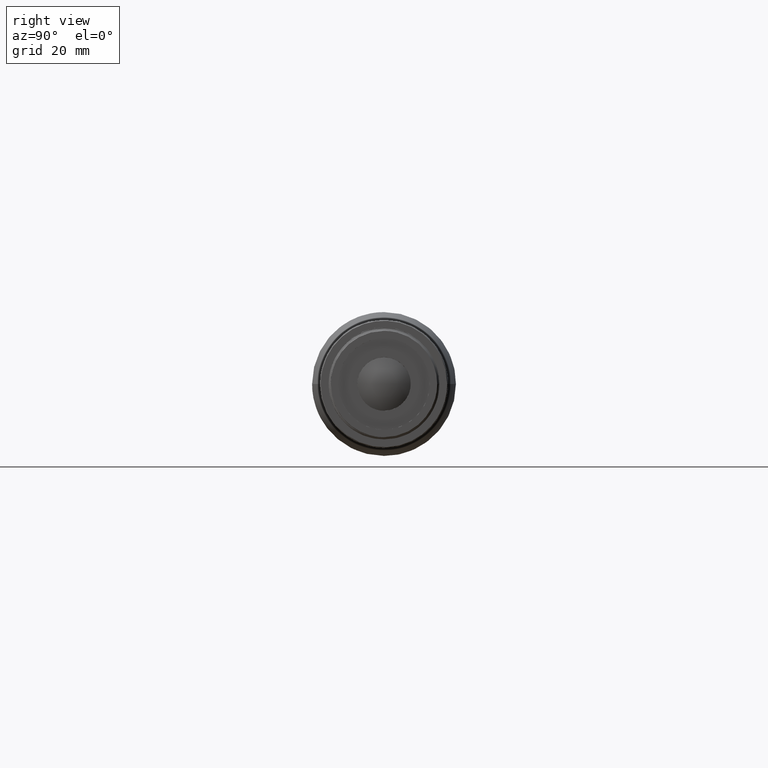
[diagram: clean part render]
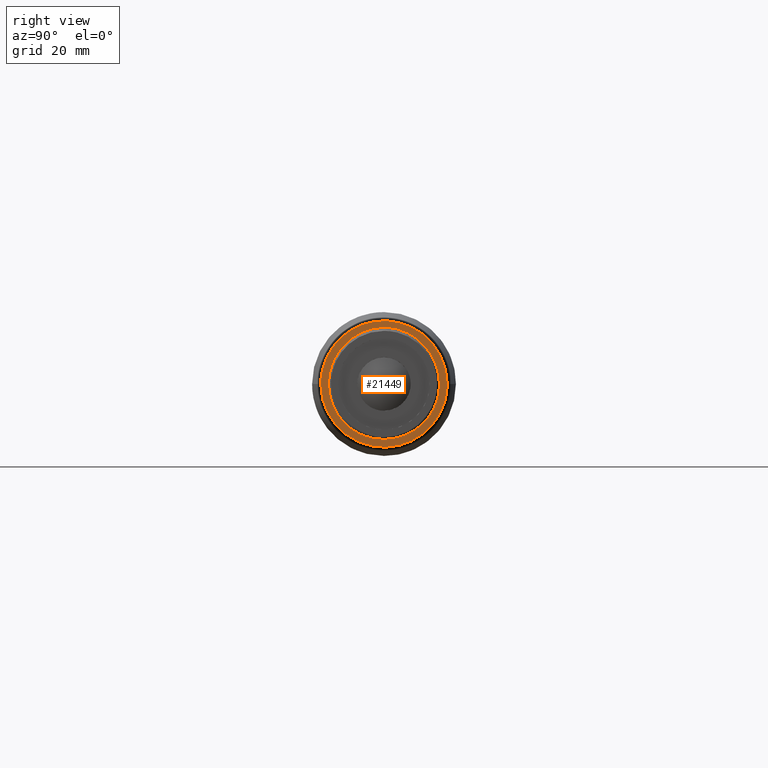
[diagram: same view with one face highlighted and labeled with its STEP entity id]
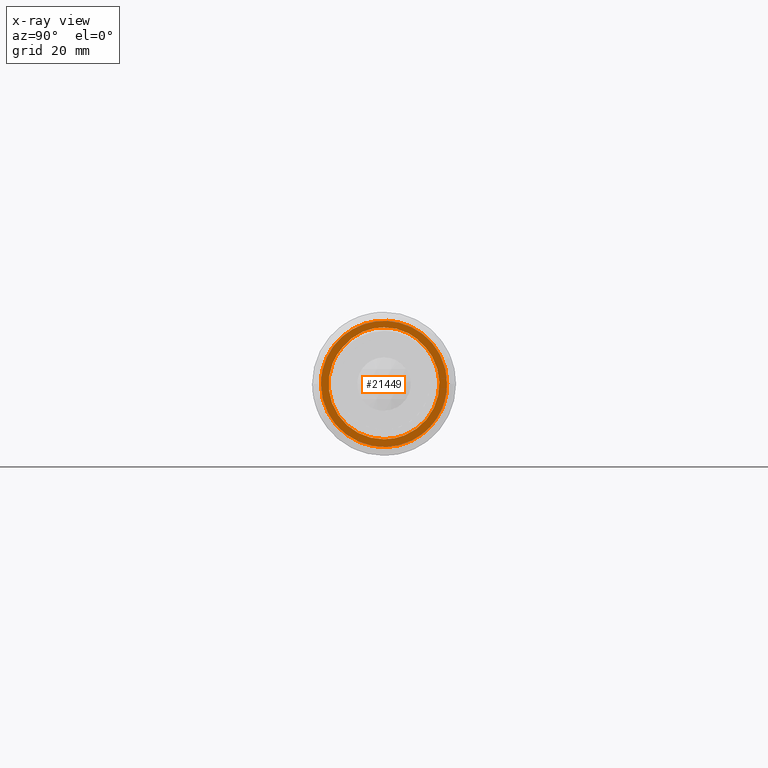
[diagram: x-ray of the same camera — body ghosted, the highlighted face saturated]
A machine part, right view. The second image highlights one B-rep face of the part: STEP entity #21449.
The next image is the same camera in x-ray: the body ghosted, the highlighted face saturated — about 0% of this face is hidden behind the body in this view.
In plain terms, the highlighted planar face has unit normal (1, 0, 0).
Its self-contained STEP definition (entity closure, byte-faithful):
#209 = CARTESIAN_POINT ( 'NONE',  ( 110.8899999999999721, -14.38089025966805679, -1.854888390386311814 ) ) ;
#343 = CARTESIAN_POINT ( 'NONE',  ( 110.8899999999999721, 6.124928014343616667, 13.14698133662224677 ) ) ;
#346 = B_SPLINE_CURVE_WITH_KNOTS ( 'NONE', 3,
 ( #15516, #21509, #11596, #10904, #4902, #16903, #16630, #2833, #20813, #22632, #17032, #24458, #11042, #2968, #10768, #6860, #4153, #9074 ),
 .UNSPECIFIED., .F., .F.,
 ( 4, 2, 2, 2, 2, 2, 2, 2, 4 ),
 ( 0.000000000000000000, 0.1250000000000000833, 0.2500000000000001665, 0.3750000000000001665, 0.5000000000000001110, 0.6250000000000001110, 0.7500000000000000000, 0.8750000000000000000, 1.000000000000000000 ),
 .UNSPECIFIED. ) ;
#469 = CARTESIAN_POINT ( 'NONE',  ( 110.8900000000000148, -9.118212392538644906, -11.28776646199011147 ) ) ;
#477 = CARTESIAN_POINT ( 'NONE',  ( 110.8900000000000006, -13.88176625558764954, 4.235138104806719817 ) ) ;
#549 = AXIS2_PLACEMENT_3D ( 'NONE', #23733, #10295, #20078 ) ;
#606 = CARTESIAN_POINT ( 'NONE',  ( 110.8900000000000290, 3.055694739063578247, -14.17585738554136121 ) ) ;
#614 = CARTESIAN_POINT ( 'NONE',  ( 110.8900000000000432, -2.529376640427713596, 14.27770877346809009 ) ) ;
#624 = CARTESIAN_POINT ( 'NONE',  ( 110.8899929041900236, 10.99893063213385069, 6.349116941422508376 ) ) ;
#684 = CARTESIAN_POINT ( 'NONE',  ( 110.8900000000000290, 8.191349464901058752, -9.769047661782654046 ) ) ;
#732 = CARTESIAN_POINT ( 'NONE',  ( 110.8900000000000006, -8.467347902863867404, -11.79378151558363008 ) ) ;
#742 = CARTESIAN_POINT ( 'NONE',  ( 110.8900000000000148, 2.696259969605198314, 14.24713898148061553 ) ) ;
#773 = VERTEX_POINT ( 'NONE', #22778 ) ;
#788 = CARTESIAN_POINT ( 'NONE',  ( 110.8900304588281642, 10.99599495080577860, 6.354279324268050644 ) ) ;
#858 = CARTESIAN_POINT ( 'NONE',  ( 110.8900000000000148, -9.547246602812174743, -10.91330918613931367 ) ) ;
#868 = CARTESIAN_POINT ( 'NONE',  ( 110.8899999999999864, -13.14698133788247247, 6.124928011639973136 ) ) ;
#922 = CARTESIAN_POINT ( 'NONE',  ( 110.8899999999999864, 12.99824538863867751, 6.459031673815791130 ) ) ;
#994 = CARTESIAN_POINT ( 'NONE',  ( 110.8900000000000148, -9.582080048781746129, -10.88273527711077548 ) ) ;
#1055 = CARTESIAN_POINT ( 'NONE',  ( 110.8900000000000148, 14.26327141383545616, 2.609574245805175163 ) ) ;
#1123 = CARTESIAN_POINT ( 'NONE',  ( 110.8900000000000148, 11.59137060158243671, -8.711502445062738076 ) ) ;
#1310 = CARTESIAN_POINT ( 'NONE',  ( 110.8900000000000148, 7.985786536878683783, 12.10292737413514530 ) ) ;
#1447 = EDGE_CURVE ( 'NONE', #2808, #17287, #25803, .T. ) ;
#1452 = CARTESIAN_POINT ( 'NONE',  ( 110.8899999999999721, -14.49999846400000081, 0.8870597290047129713 ) ) ;
#1628 = CARTESIAN_POINT ( 'NONE',  ( 110.8900000000000148, 13.00839062788618783, -6.405615348359229522 ) ) ;
#1789 = CARTESIAN_POINT ( 'NONE',  ( 110.8900000000000006, -13.04496023603895694, -6.330806542398812020 ) ) ;
#1919 = ORIENTED_EDGE ( 'NONE', *, *, #10400, .T. ) ;
#2182 = CARTESIAN_POINT ( 'NONE',  ( 110.8899886678835855, 11.00045045016391931, 6.346565496968409548 ) ) ;
#2279 = B_SPLINE_CURVE_WITH_KNOTS ( 'NONE', 3,
 ( #2182, #624, #8552, #20423 ),
 .UNSPECIFIED., .F., .F.,
 ( 4, 4 ),
 ( 0.000000000000000000, 0.9999885151840346431 ),
 .UNSPECIFIED. ) ;
#2296 = CARTESIAN_POINT ( 'NONE',  ( 110.8899999999999864, -13.92637124779619384, -4.038099644656803378 ) ) ;
#2427 = CARTESIAN_POINT ( 'NONE',  ( 110.8900000000000148, -12.83208346972538649, -6.767554035467759910 ) ) ;
#2434 = CARTESIAN_POINT ( 'NONE',  ( 110.8900000000000148, -1.873548574637980746, 14.38150453208943702 ) ) ;
#2455 = CARTESIAN_POINT ( 'NONE',  ( 110.8899999999924120, 1.021318446481345177E-14, 12.99204006032720748 ) ) ;
#2562 = CARTESIAN_POINT ( 'NONE',  ( 110.8900000000000148, -4.063426825693380096, -13.92041956770296984 ) ) ;
#2570 = CARTESIAN_POINT ( 'NONE',  ( 110.8900000000000148, -2.256392658842234056, 14.32412991780799771 ) ) ;
#2643 = CARTESIAN_POINT ( 'NONE',  ( 110.8899999999924120, 1.021318446481345177E-14, 12.99204006032720748 ) ) ;
#2698 = CARTESIAN_POINT ( 'NONE',  ( 110.8900000000000006, 1.503127021955507292, -14.44426933156390014 ) ) ;
#2708 = CARTESIAN_POINT ( 'NONE',  ( 110.8900000000000290, -10.60684431972986275, 9.899277001283117272 ) ) ;
#2737 = B_SPLINE_CURVE_WITH_KNOTS ( 'NONE', 3,
 ( #2455, #8432, #6750, #12476, #8294, #10665, #16263, #22658, #16398, #6218 ),
 .UNSPECIFIED., .F., .F.,
 ( 4, 2, 2, 2, 4 ),
 ( 0.000000000000000000, 0.2500000000000000000, 0.5000000000000000000, 0.7500000000000000000, 1.000000000000000000 ),
 .UNSPECIFIED. ) ;
#2779 = CARTESIAN_POINT ( 'NONE',  ( 110.8899999999999864, -8.929358363957490496, 9.141035087083475119 ) ) ;
#2808 = VERTEX_POINT ( 'NONE', #10291 ) ;
#2827 = CARTESIAN_POINT ( 'NONE',  ( 110.8900000000000006, -11.83766060356584937, -8.375175776053005450 ) ) ;
#2833 = CARTESIAN_POINT ( 'NONE',  ( 110.8900000000000006, -10.42737178112445484, -7.351288742382127595 ) ) ;
#2836 = CARTESIAN_POINT ( 'NONE',  ( 110.8899999999999864, -11.99787586693648045, 8.142797945954210803 ) ) ;
#2959 = CARTESIAN_POINT ( 'NONE',  ( 110.8900000000000290, 9.917447625885047913, -10.59024997758743858 ) ) ;
#2968 = CARTESIAN_POINT ( 'NONE',  ( 110.8900000000000290, -12.37053762135592549, 3.121109961580206260 ) ) ;
#3157 = CARTESIAN_POINT ( 'NONE',  ( 110.8900000000000006, 8.039051855987207063, 12.06762231554328046 ) ) ;
#3226 = CARTESIAN_POINT ( 'NONE',  ( 110.8900000000000006, 14.32634590240914285, -2.240642804258783816 ) ) ;
#3281 = CARTESIAN_POINT ( 'NONE',  ( 110.8900000000000006, 13.50348643214929467, 5.282673392577245330 ) ) ;
#3355 = CARTESIAN_POINT ( 'NONE',  ( 110.8900000000000006, 12.94440261534849945, -6.534393367782600492 ) ) ;
#3599 = CARTESIAN_POINT ( 'NONE',  ( 110.8900000000000006, 13.90551440681925222, -4.109349991613386877 ) ) ;
#3992 = CARTESIAN_POINT ( 'NONE',  ( 110.8900000000000006, -13.92359589969639089, -4.047664094962153847 ) ) ;
#4054 = EDGE_CURVE ( 'NONE', #14751, #2808, #2737, .T. ) ;
#4153 = CARTESIAN_POINT ( 'NONE',  ( 110.8900000000000148, -10.30758092368942158, 7.518420564737843037 ) ) ;
#4378 = CARTESIAN_POINT ( 'NONE',  ( 110.8899999999999721, 9.482118777172981794, -10.96994365850258291 ) ) ;
#4386 = CARTESIAN_POINT ( 'NONE',  ( 110.8900000000000006, -13.45928733468691973, 5.394297387163335955 ) ) ;
#4501 = CARTESIAN_POINT ( 'NONE',  ( 110.8900000000000006, -11.29485484565264208, -9.106888044221438605 ) ) ;
#4508 = CARTESIAN_POINT ( 'NONE',  ( 110.8900000000000006, -5.145670424356409534, 13.55648168336941417 ) ) ;
#4630 = CARTESIAN_POINT ( 'NONE',  ( 110.8900000000000006, -1.207969404247646983, -14.49995264421553998 ) ) ;
#4640 = CARTESIAN_POINT ( 'NONE',  ( 110.8900000000000148, 2.840488480973712093, 14.21927406366260271 ) ) ;
#4714 = CARTESIAN_POINT ( 'NONE',  ( 110.8899999999999864, 12.69978878100096864, -1.117077970501929585 ) ) ;
#4765 = CARTESIAN_POINT ( 'NONE',  ( 110.8899999999999864, 5.907542809610066392, -13.24791012194770623 ) ) ;
#4776 = CARTESIAN_POINT ( 'NONE',  ( 110.8900000000000006, -4.953289043290712179, 13.62863848170736070 ) ) ;
#4844 = CARTESIAN_POINT ( 'NONE',  ( 110.8900000000000148, 9.767074011443263259, -8.193553103259286985 ) ) ;
#4896 = CARTESIAN_POINT ( 'NONE',  ( 110.8900000000000290, 9.442932776301500297, -11.00377650353194703 ) ) ;
#4902 = CARTESIAN_POINT ( 'NONE',  ( 110.8900000000000432, -5.876003834468471965, -11.32437330652600593 ) ) ;
#4907 = CARTESIAN_POINT ( 'NONE',  ( 110.8900000000000006, -5.792808705539210123, 13.30164514551074539 ) ) ;
#5028 = CARTESIAN_POINT ( 'NONE',  ( 110.8899999999999721, 12.85306710590256429, -6.713602278769433163 ) ) ;
#5089 = CARTESIAN_POINT ( 'NONE',  ( 110.8900000000000006, 11.58889893280850991, 8.772101741283437448 ) ) ;
#5222 = CARTESIAN_POINT ( 'NONE',  ( 110.8900000000000148, 14.27770501275336912, 2.529396966660115265 ) ) ;
#5291 = CARTESIAN_POINT ( 'NONE',  ( 110.8900000000000290, 14.49999846373557943, -0.6446150092553604161 ) ) ;
#5413 = CARTESIAN_POINT ( 'NONE',  ( 110.8900000000000432, 11.56173098096975060, -8.750803542926636425 ) ) ;
#5678 = CARTESIAN_POINT ( 'NONE',  ( 110.8900000000000006, 14.46973944790725142, 1.105690196509306000 ) ) ;
#6194 = CARTESIAN_POINT ( 'NONE',  ( 110.8900000000000290, -14.37434275448517162, -1.904811901558434162 ) ) ;
#6218 = CARTESIAN_POINT ( 'NONE',  ( 110.8900000000000006, 9.499345821164963510, 8.429260288825503267 ) ) ;
#6333 = CARTESIAN_POINT ( 'NONE',  ( 110.8900000000000006, -2.583930658671265590, 14.26793579797147515 ) ) ;
#6455 = CARTESIAN_POINT ( 'NONE',  ( 110.8900000000000148, -11.60953451924139301, -8.687283797727372914 ) ) ;
#6465 = CARTESIAN_POINT ( 'NONE',  ( 110.8900000000000148, -14.21927406424515006, 2.840488478056536703 ) ) ;
#6533 = CARTESIAN_POINT ( 'NONE',  ( 110.8900000000000290, 4.345896369681974569, -11.93688448497686672 ) ) ;
#6584 = CARTESIAN_POINT ( 'NONE',  ( 110.8900000000000006, -7.661080222008679996, -12.31649478033846634 ) ) ;
#6593 = CARTESIAN_POINT ( 'NONE',  ( 110.8900000000000006, -0.4432766347415915686, 14.50001412060764672 ) ) ;
#6665 = CARTESIAN_POINT ( 'NONE',  ( 110.8900304588281642, 10.99599495080577860, 6.354279324268050644 ) ) ;
#6666 = CARTESIAN_POINT ( 'NONE',  ( 110.8900000000000006, 10.44036798141070932, -7.316502900086195638 ) ) ;
#6715 = CARTESIAN_POINT ( 'NONE',  ( 110.8900000000000148, 4.969433959931864209, -13.64412191480543513 ) ) ;
#6725 = CARTESIAN_POINT ( 'NONE',  ( 110.8900000000000006, 3.041815769170938211, 14.17823101277386222 ) ) ;
#6750 = CARTESIAN_POINT ( 'NONE',  ( 110.8900000000000148, 1.813080508921854683, 12.89066805962905171 ) ) ;
#6803 = CARTESIAN_POINT ( 'NONE',  ( 110.8900000000000006, 11.55470781776872968, -5.386907688741958466 ) ) ;
#6854 = CARTESIAN_POINT ( 'NONE',  ( 110.8899999999999721, 8.790167010762084843, -11.53781372424980134 ) ) ;
#6860 = CARTESIAN_POINT ( 'NONE',  ( 110.8900000000000006, -10.98056838731156049, 6.496048516234424142 ) ) ;
#6864 = CARTESIAN_POINT ( 'NONE',  ( 110.8900000000000006, -7.206662549229421622, 12.58657438146572360 ) ) ;
#6912 = CARTESIAN_POINT ( 'NONE',  ( 110.8900000000000148, 10.96058772579561591, 9.545453078416885617 ) ) ;
#6933 = CARTESIAN_POINT ( 'NONE',  ( 110.8900000000000148, -1.812917754194805164, 12.89078964398025740 ) ) ;
#6984 = CARTESIAN_POINT ( 'NONE',  ( 110.8900000000000148, -10.80777775054700207, -9.690136931243463536 ) ) ;
#7115 = CARTESIAN_POINT ( 'NONE',  ( 110.8900000000000148, 13.81561258614773102, -4.404277707119882201 ) ) ;
#7174 = CARTESIAN_POINT ( 'NONE',  ( 110.8899999999999579, 8.653621585588290088, 11.63948049037379739 ) ) ;
#7817 = FACE_BOUND ( 'NONE', #11477, .T. ) ;
#7846 = ORIENTED_EDGE ( 'NONE', *, *, #12336, .F. ) ;
#7886 = CARTESIAN_POINT ( 'NONE',  ( 110.8899999999999721, -14.38980823323456271, -1.784979897729058074 ) ) ;
#8006 = EDGE_CURVE ( 'NONE', #20088, #12445, #16924, .T. ) ;
#8137 = CARTESIAN_POINT ( 'NONE',  ( 110.8900000000000148, -14.37697428766872143, -1.884843282485363147 ) ) ;
#8212 = CARTESIAN_POINT ( 'NONE',  ( 110.8899886678835855, 11.00045045016391931, 6.346565496968409548 ) ) ;
#8267 = CARTESIAN_POINT ( 'NONE',  ( 110.8900000000000006, -13.33499499643911790, -5.701160555243199646 ) ) ;
#8275 = CARTESIAN_POINT ( 'NONE',  ( 110.8900000000000006, -7.882193009358367419, 12.17065454666316349 ) ) ;
#8294 = CARTESIAN_POINT ( 'NONE',  ( 110.8900000000000148, 4.447344846687964370, 12.18689512701919497 ) ) ;
#8342 = CARTESIAN_POINT ( 'NONE',  ( 110.8899999999999864, 11.97810214982849253, -4.365497355696341231 ) ) ;
#8402 = CARTESIAN_POINT ( 'NONE',  ( 110.8899999999999864, 3.533751234503810235, -14.06285383404458855 ) ) ;
#8410 = CARTESIAN_POINT ( 'NONE',  ( 110.8900000000000006, -13.43638908712624236, 5.451087907631694485 ) ) ;
#8432 = CARTESIAN_POINT ( 'NONE',  ( 110.8899999999999864, 0.9118714742061003742, 12.99204006000000078 ) ) ;
#8533 = CARTESIAN_POINT ( 'NONE',  ( 110.8900000000000290, 3.312711746047914296, -14.11688490520861272 ) ) ;
#8543 = CARTESIAN_POINT ( 'NONE',  ( 110.8900000000000290, -3.100699643712069520, 14.17240503409704822 ) ) ;
#8552 = CARTESIAN_POINT ( 'NONE',  ( 110.8900181625294152, 10.99745163462843323, 6.351691678308744038 ) ) ;
#8614 = CARTESIAN_POINT ( 'NONE',  ( 110.8900000000000006, 11.55734416926284602, 5.381400365357633220 ) ) ;
#8617 = CARTESIAN_POINT ( 'NONE',  ( 110.8900000000000432, -0.9122427748870053366, 12.99204005999999545 ) ) ;
#8663 = CARTESIAN_POINT ( 'NONE',  ( 110.8900000000000432, -3.852228699490912511, -13.97914109770992397 ) ) ;
#8674 = CARTESIAN_POINT ( 'NONE',  ( 110.8900000000000006, -4.566489028176514253, 13.76576423760447554 ) ) ;
#8797 = CARTESIAN_POINT ( 'NONE',  ( 110.8900000000000148, 6.694006864263763568, -12.86241432943043961 ) ) ;
#8807 = CARTESIAN_POINT ( 'NONE',  ( 110.8900000000000006, -13.31924584853929616, 5.733654367342062130 ) ) ;
#8935 = CARTESIAN_POINT ( 'NONE',  ( 110.8900000000000148, 2.540165628637469197, -14.28159906963915127 ) ) ;
#8996 = CARTESIAN_POINT ( 'NONE',  ( 110.8899999999999864, 14.17240503473416169, 3.100699640801813040 ) ) ;
#9067 = CARTESIAN_POINT ( 'NONE',  ( 110.8900000000000006, 12.66430115868659811, -7.068262479157385592 ) ) ;
#9074 = CARTESIAN_POINT ( 'NONE',  ( 110.8899999999847950, -9.499346012320913246, 8.429260073198518555 ) ) ;
#9447 = CARTESIAN_POINT ( 'NONE',  ( 110.8899998307999937, -14.49999846309798635, -3.472007567860935150E-10 ) ) ;
#9976 = CARTESIAN_POINT ( 'NONE',  ( 110.8900000000000290, -13.93270457544020857, -4.016191641703090731 ) ) ;
#10159 = CARTESIAN_POINT ( 'NONE',  ( 110.8900000000000006, 9.499345821164963510, 8.429260288825503267 ) ) ;
#10240 = CARTESIAN_POINT ( 'NONE',  ( 110.8900000000000148, -2.447524913994546747, 14.29213174640882755 ) ) ;
#10291 = CARTESIAN_POINT ( 'NONE',  ( 110.8900000000000006, 9.499345821164963510, 8.429260288825503267 ) ) ;
#10295 = DIRECTION ( 'NONE',  ( 1.000000000000000000, 0.000000000000000000, 0.000000000000000000 ) ) ;
#10361 = CARTESIAN_POINT ( 'NONE',  ( 110.8900000000000006, -9.558191480512462590, -10.90372227648168213 ) ) ;
#10368 = CARTESIAN_POINT ( 'NONE',  ( 110.8900000000000148, -13.47111330685872588, 5.364689546222785488 ) ) ;
#10400 = EDGE_CURVE ( 'NONE', #773, #10812, #13588, .T. ) ;
#10502 = CARTESIAN_POINT ( 'NONE',  ( 110.8900000000000148, -2.398440471861800205, -14.35123468346855446 ) ) ;
#10510 = CARTESIAN_POINT ( 'NONE',  ( 110.8900000000000006, -1.105542110630902908, 14.46976684658471868 ) ) ;
#10633 = CARTESIAN_POINT ( 'NONE',  ( 110.8900000000000148, 3.422701702992186235, -14.09030349114803471 ) ) ;
#10643 = CARTESIAN_POINT ( 'NONE',  ( 110.8900000000000148, 4.900303568852542924, 13.65497901843398054 ) ) ;
#10665 = CARTESIAN_POINT ( 'NONE',  ( 110.8899999999999864, 6.090991632468633732, 11.39750075886972169 ) ) ;
#10712 = CARTESIAN_POINT ( 'NONE',  ( 110.8900000000000432, 5.866707833115732740, -11.27752943483574555 ) ) ;
#10761 = CARTESIAN_POINT ( 'NONE',  ( 110.8900000000000006, 6.758841847131252578, -12.82845810861971891 ) ) ;
#10768 = CARTESIAN_POINT ( 'NONE',  ( 110.8900000000000148, -12.01405537427228154, 4.293171940462302771 ) ) ;
#10772 = CARTESIAN_POINT ( 'NONE',  ( 110.8900000000000006, -12.77370805001198129, 6.892451302682356840 ) ) ;
#10812 = VERTEX_POINT ( 'NONE', #23471 ) ;
#10898 = CARTESIAN_POINT ( 'NONE',  ( 110.8899999999999864, -10.18813902865418441, -10.32319598186064447 ) ) ;
#10904 = CARTESIAN_POINT ( 'NONE',  ( 110.8900000000000006, -4.762807133083390099, -11.83584372371283777 ) ) ;
#11008 = VERTEX_POINT ( 'NONE', #22536 ) ;
#11042 = CARTESIAN_POINT ( 'NONE',  ( 110.8900000000000432, -12.73799620419624823, 0.7157545305672901037 ) ) ;
#11093 = CARTESIAN_POINT ( 'NONE',  ( 110.8900000000000290, 13.30164514669904818, 5.792808702811109711 ) ) ;
#11167 = CARTESIAN_POINT ( 'NONE',  ( 110.8900000000000290, 14.37034324095619731, -1.934756230247088427 ) ) ;
#11220 = CARTESIAN_POINT ( 'NONE',  ( 110.8900000000000148, 12.36631272477405830, 7.573070668062499067 ) ) ;
#11477 = EDGE_LOOP ( 'NONE', ( #21320, #25546, #7846, #1919, #18643, #22055 ) ) ;
#11532 = CARTESIAN_POINT ( 'NONE',  ( 110.8900000000000006, 12.98930850403095327, -6.444319209590966047 ) ) ;
#11596 = CARTESIAN_POINT ( 'NONE',  ( 110.8899999999999864, -2.429092541121441684, -12.52471002771433994 ) ) ;
#11810 = CARTESIAN_POINT ( 'NONE',  ( 110.8899999999999864, -14.37319198083490157, -1.913485287867192852 ) ) ;
#11931 = CARTESIAN_POINT ( 'NONE',  ( 110.8900000000000290, -13.80488255033468370, -4.454734764802547708 ) ) ;
#12195 = CARTESIAN_POINT ( 'NONE',  ( 110.8900000000000148, -14.08703655675989275, -3.444464487469777403 ) ) ;
#12321 = CARTESIAN_POINT ( 'NONE',  ( 110.8900000000000006, 9.508208144417077179, -10.94733790898706616 ) ) ;
#12328 = CARTESIAN_POINT ( 'NONE',  ( 110.8900000000000006, -6.459031676481585826, 12.99824538731358992 ) ) ;
#12336 = EDGE_CURVE ( 'NONE', #773, #17287, #2279, .T. ) ;
#12396 = CARTESIAN_POINT ( 'NONE',  ( 110.8900000000000006, -1.216397468861707409E-09, -12.69999999924074352 ) ) ;
#12416 = ORIENTED_EDGE ( 'NONE', *, *, #8006, .T. ) ;
#12445 = VERTEX_POINT ( 'NONE', #18072 ) ;
#12447 = CARTESIAN_POINT ( 'NONE',  ( 110.8899999999999864, -9.700930313699977603, -10.77725365171772864 ) ) ;
#12455 = CARTESIAN_POINT ( 'NONE',  ( 110.8900000000000148, -12.40448363202553317, 7.524572984912817120 ) ) ;
#12476 = CARTESIAN_POINT ( 'NONE',  ( 110.8899999999999864, 3.590969365278142700, 12.48590956462756374 ) ) ;
#12579 = CARTESIAN_POINT ( 'NONE',  ( 110.8900000000000148, -3.642404763402014467, -14.03525778837378368 ) ) ;
#12590 = CARTESIAN_POINT ( 'NONE',  ( 110.8899999999999864, 3.442378718322934184, 14.08897256060749648 ) ) ;
#12635 = CARTESIAN_POINT ( 'NONE',  ( 110.8900000000000006, 10.56716290428624383, 7.096464145924587186 ) ) ;
#12660 = CARTESIAN_POINT ( 'NONE',  ( 110.8899999999999721, 5.122050617930304917, -11.64496165441504338 ) ) ;
#12712 = CARTESIAN_POINT ( 'NONE',  ( 110.8899999999999721, 6.596606245045977701, -12.91296306666034432 ) ) ;
#12721 = CARTESIAN_POINT ( 'NONE',  ( 110.8900000000000006, -9.545453080652652744, 10.96058772385493718 ) ) ;
#12772 = CARTESIAN_POINT ( 'NONE',  ( 110.8899999999999864, 14.01126438706191202, 3.784739983137039410 ) ) ;
#12791 = CARTESIAN_POINT ( 'NONE',  ( 110.8900000000000148, 12.55513921587072090, -2.213261500831651407 ) ) ;
#12842 = CARTESIAN_POINT ( 'NONE',  ( 110.8900000000000006, 6.368301119121883680, -13.02821096229365949 ) ) ;
#12853 = CARTESIAN_POINT ( 'NONE',  ( 110.8900000000000148, -11.63948049215676050, 8.653621583189750055 ) ) ;
#13044 = CARTESIAN_POINT ( 'NONE',  ( 110.8899999999999864, 13.55648168442527890, 5.145670421574508602 ) ) ;
#13114 = CARTESIAN_POINT ( 'NONE',  ( 110.8900000000000148, 11.53293039618370308, -8.788813654944908293 ) ) ;
#13242 = CARTESIAN_POINT ( 'NONE',  ( 110.8900000000000006, 13.02107576445441062, -6.379790407409578812 ) ) ;
#13368 = CARTESIAN_POINT ( 'NONE',  ( 110.8900000000000290, 14.36089647218938303, -2.003864565581189972 ) ) ;
#13436 = CARTESIAN_POINT ( 'NONE',  ( 110.8900000000000006, -14.24713898203361850, 2.696259966682836406 ) ) ;
#13495 = CARTESIAN_POINT ( 'NONE',  ( 110.8900000000000006, 14.27514442370838310, -2.555227661603494127 ) ) ;
#13588 = B_SPLINE_CURVE_WITH_KNOTS ( 'NONE', 3,
 ( #8212, #8614, #22574, #18534, #24666, #4714, #12791, #8342, #6803, #6666, #4844, #684, #16577, #10712, #12660, #6533, #20623, #16444, #18796, #16182, #12396 ),
 .UNSPECIFIED., .F., .F.,
 ( 4, 2, 2, 2, 2, 2, 2, 1, 2, 2, 4 ),
 ( 0.000000000000000000, 0.1249999999999999722, 0.2500000000000000000, 0.3750000000000000000, 0.5000000000000001110, 0.6250000000000001110, 0.7500000000000000000, 0.8125000000000000000, 0.8437500000000000000, 0.8750000000000000000, 1.000000000000000000 ),
 .UNSPECIFIED. ) ;
#13631 = CARTESIAN_POINT ( 'NONE',  ( 110.8899999999999864, 14.32411793125019983, 2.256457444774524035 ) ) ;
#13697 = EDGE_CURVE ( 'NONE', #11008, #14751, #25272, .T. ) ;
#13893 = CARTESIAN_POINT ( 'NONE',  ( 110.8900000000000148, -14.49999846400000081, -0.3221368349864335290 ) ) ;
#14145 = CARTESIAN_POINT ( 'NONE',  ( 110.8900000000000006, -14.32329309962837804, -2.286163173937812321 ) ) ;
#14274 = CARTESIAN_POINT ( 'NONE',  ( 110.8900000000000006, -13.11170277923977068, -6.191757337239709003 ) ) ;
#14284 = CARTESIAN_POINT ( 'NONE',  ( 110.8900000000000006, 5.536139548249921383, 13.40178506941137648 ) ) ;
#14408 = CARTESIAN_POINT ( 'NONE',  ( 110.8899999999999864, -7.246214937522432287, -12.56094200493980928 ) ) ;
#14418 = CARTESIAN_POINT ( 'NONE',  ( 110.8900000000000148, -14.23609547706665168, 2.753981251621468118 ) ) ;
#14534 = CARTESIAN_POINT ( 'NONE',  ( 110.8900000000000006, -7.035849434264644486, -12.67893826529646795 ) ) ;
#14544 = CARTESIAN_POINT ( 'NONE',  ( 110.8900000000000006, 0.8865532784051805004, 14.49996715078470544 ) ) ;
#14671 = CARTESIAN_POINT ( 'NONE',  ( 110.8900000000000148, -11.63444258259900010, -8.653893842401467751 ) ) ;
#14682 = CARTESIAN_POINT ( 'NONE',  ( 110.8900000000000290, -5.282673395347281975, 13.50348643106565305 ) ) ;
#14751 = VERTEX_POINT ( 'NONE', #21431 ) ;
#14806 = CARTESIAN_POINT ( 'NONE',  ( 110.8900000000000006, 9.166085219940102391, -11.23689323578511967 ) ) ;
#14816 = CARTESIAN_POINT ( 'NONE',  ( 110.8900000000000006, -11.10761542780291222, 9.344135988429400186 ) ) ;
#14867 = CARTESIAN_POINT ( 'NONE',  ( 110.8900000000000148, 9.899277003467190639, 10.60684431769334424 ) ) ;
#14940 = CARTESIAN_POINT ( 'NONE',  ( 110.8899999999999721, -5.512396813010663976, -13.43394092122340844 ) ) ;
#15001 = CARTESIAN_POINT ( 'NONE',  ( 110.8900000000000148, 8.297651910454728608, 11.89232104886090902 ) ) ;
#15010 = CARTESIAN_POINT ( 'NONE',  ( 110.8899998307999937, -14.49999846309798635, -3.472007567860935150E-10 ) ) ;
#15020 = CARTESIAN_POINT ( 'NONE',  ( 110.8899999999999864, -6.090955955174550240, 11.39742647699852185 ) ) ;
#15069 = CARTESIAN_POINT ( 'NONE',  ( 110.8900000000000148, 14.36555722935474932, -1.969979131793749616 ) ) ;
#15130 = CARTESIAN_POINT ( 'NONE',  ( 110.8900000000000006, 14.29212532529264656, 2.447559619386511454 ) ) ;
#15201 = CARTESIAN_POINT ( 'NONE',  ( 110.8899999999999864, 13.86869359015996750, -4.232486724600416750 ) ) ;
#15274 = CARTESIAN_POINT ( 'NONE',  ( 110.8900000000000148, -14.41930775320984992, 1.766547722595140257 ) ) ;
#15328 = CARTESIAN_POINT ( 'NONE',  ( 110.8900000000000148, 12.26238955095828409, -7.762552393590424593 ) ) ;
#15445 = ORIENTED_EDGE ( 'NONE', *, *, #16317, .T. ) ;
#15451 = CARTESIAN_POINT ( 'NONE',  ( 110.8899999999999864, 11.46533005359374080, -8.877130983661693620 ) ) ;
#15516 = CARTESIAN_POINT ( 'NONE',  ( 110.8900000000000006, -1.216397468861707409E-09, -12.69999999924074352 ) ) ;
#15849 = CARTESIAN_POINT ( 'NONE',  ( 110.8900000000000006, -13.96396413531190284, -3.906568156285812332 ) ) ;
#16182 = CARTESIAN_POINT ( 'NONE',  ( 110.8900000000000006, 1.110072619513073011, -12.69999999999999574 ) ) ;
#16235 = CARTESIAN_POINT ( 'NONE',  ( 110.8899999999999864, -13.18791629607979488, -6.028903920066468025 ) ) ;
#16243 = CARTESIAN_POINT ( 'NONE',  ( 110.8900000000000148, 5.394297389924555652, 13.45928733358017126 ) ) ;
#16263 = CARTESIAN_POINT ( 'NONE',  ( 110.8900000000000148, 6.859458050663150175, 10.91592705259758667 ) ) ;
#16317 = EDGE_CURVE ( 'NONE', #12445, #20088, #23665, .T. ) ;
#16367 = CARTESIAN_POINT ( 'NONE',  ( 110.8900000000000148, 7.310779368148121016, -12.53427160540984886 ) ) ;
#16375 = CARTESIAN_POINT ( 'NONE',  ( 110.8900000000000006, -14.08897256131339759, 3.442378715430821856 ) ) ;
#16398 = CARTESIAN_POINT ( 'NONE',  ( 110.8900000000000148, 8.929126271405102955, 9.141324913450898038 ) ) ;
#16444 = CARTESIAN_POINT ( 'NONE',  ( 110.8900000000000148, 3.554321992538895358, -12.19562846972705472 ) ) ;
#16494 = EDGE_CURVE ( 'NONE', #10812, #11008, #346, .T. ) ;
#16498 = CARTESIAN_POINT ( 'NONE',  ( 110.8900000000000006, -13.04000720384181733, -6.341006219528591892 ) ) ;
#16507 = CARTESIAN_POINT ( 'NONE',  ( 110.8900000000000432, 5.451087910388853430, 13.43638908600748039 ) ) ;
#16553 = CARTESIAN_POINT ( 'NONE',  ( 110.8900000000000006, 10.06826595610013442, 7.788116322792792090 ) ) ;
#16577 = CARTESIAN_POINT ( 'NONE',  ( 110.8900000000000432, 7.314026219402718354, -10.44198581032051720 ) ) ;
#16625 = CARTESIAN_POINT ( 'NONE',  ( 110.8900000000000006, 3.495992743420335724, -14.07229199423698596 ) ) ;
#16630 = CARTESIAN_POINT ( 'NONE',  ( 110.8900000000000006, -8.841986765969750195, -9.197180104720537486 ) ) ;
#16633 = CARTESIAN_POINT ( 'NONE',  ( 110.8899999999999721, -3.784739986016831370, 14.01126438628362791 ) ) ;
#16710 = CARTESIAN_POINT ( 'NONE',  ( 110.8899999999999579, -6.859654691262891291, 10.91587600958494697 ) ) ;
#16760 = CARTESIAN_POINT ( 'NONE',  ( 110.8900000000000148, 8.015056990019289174, -12.10570559990070372 ) ) ;
#16771 = CARTESIAN_POINT ( 'NONE',  ( 110.8900000000000006, -12.06762231719361012, 8.039051853510020607 ) ) ;
#16897 = CARTESIAN_POINT ( 'NONE',  ( 110.8900000000000006, 10.46306832484845906, -10.06136301341417116 ) ) ;
#16903 = CARTESIAN_POINT ( 'NONE',  ( 110.8900000000000290, -7.919166131840508882, -10.00291638533702177 ) ) ;
#16924 = B_SPLINE_CURVE_WITH_KNOTS ( 'NONE', 3,
 ( #23931, #13893, #19882, #20149, #24058, #7886, #209, #8137, #6194, #11810, #14145, #23805, #12195, #22101, #15849, #21844, #9976, #2296, #3992, #11931, #17930, #8267, #16235, #14274, #22235, #19629, #1789, #16498, #2427, #24451, #24719, #2827, #18585, #20678, #14671, #24323, #6455, #4501, #6984, #10898, #22625, #12447, #18849, #994, #10361, #858, #469, #732, #6584, #14408, #14534, #22358, #20407, #18710, #24581, #14940, #20541, #2562, #8663, #22487, #12579, #10502, #4630, #18459, #2698, #8935, #606, #8533, #10633, #16625, #8402, #24856, #6715, #4765, #12842, #12712, #8797, #10761, #18320, #16367, #16760, #6854, #14806, #22755, #4896, #4378, #12321, #20807, #2959, #16897, #20280, #23272, #15451, #13114, #5413, #19478, #1123, #17285, #15328, #9067, #5028, #3355, #11532, #1628, #13242, #21447, #17026, #21204, #24988, #7115, #15201, #25237, #3599, #17159, #21073, #25361, #19238, #13495, #3226, #23151, #13368, #15069, #22888, #11167, #21327, #5291, #23020 ),
 .UNSPECIFIED., .F., .F.,
 ( 4, 1, 1, 1, 1, 1, 2, 2, 1, 1, 1, 1, 1, 2, 2, 1, 1, 1, 1, 1, 2, 2, 1, 1, 1, 1, 1, 2, 2, 1, 1, 1, 1, 1, 2, 2, 1, 1, 1, 1, 2, 2, 1, 1, 1, 2, 2, 2, 1, 1, 1, 1, 2, 2, 1, 1, 1, 1, 2, 2, 1, 1, 1, 1, 1, 2, 2, 1, 1, 1, 1, 1, 2, 2, 1, 1, 1, 1, 1, 2, 2, 1, 1, 1, 1, 1, 2, 2, 1, 1, 1, 1, 1, 2, 2, 4 ),
 ( 0.000000000000000000, 0.03124999999999585748, 0.04687499999999378275, 0.05468749999999274886, 0.05859374999999222844, 0.06054687499999195782, 0.06152343749999183292, 0.06249999999999170108, 0.09374999999998752387, 0.1093749999999854561, 0.1171874999999844152, 0.1210937499999838879, 0.1230468749999836936, 0.1240234374999835965, 0.1249999999999835132, 0.1562499999999806821, 0.1718749999999793221, 0.1796874999999786837, 0.1835937499999783507, 0.1855468749999782119, 0.1865234374999781286, 0.1874999999999780453, 0.2187499999999756861, 0.2343749999999745204, 0.2421874999999739375, 0.2460937499999736322, 0.2480468749999734102, 0.2490234374999733824, 0.2499999999999732991, 0.2812499999999720779, 0.2968749999999715228, 0.3046874999999712452, 0.3085937499999711897, 0.3105468749999711342, 0.3115234374999711342, 0.3124999999999711342, 0.3437499999999725220, 0.3593749999999732436, 0.3671874999999735767, 0.3710937499999737987, 0.3730468749999738542, 0.3749999999999739098, 0.4062499999999747979, 0.4218749999999752420, 0.4296874999999754086, 0.4335937499999755196, 0.4374999999999755751, 0.4999999999999772404, 0.5312499999999781286, 0.5468749999999784617, 0.5546874999999786837, 0.5585937499999787947, 0.5605468749999789058, 0.5624999999999789058, 0.5937499999999796829, 0.6093749999999800160, 0.6171874999999802380, 0.6210937499999802380, 0.6230468749999803491, 0.6249999999999804601, 0.6562499999999807931, 0.6718749999999810152, 0.6796874999999810152, 0.6835937499999810152, 0.6855468749999809042, 0.6865234374999807931, 0.6874999999999806821, 0.7187499999999806821, 0.7343749999999805711, 0.7421874999999805711, 0.7460937499999805711, 0.7480468749999806821, 0.7490234374999807931, 0.7499999999999807931, 0.7812499999999821254, 0.7968749999999829026, 0.8046874999999831246, 0.8085937499999833467, 0.8105468749999833467, 0.8115234374999834577, 0.8124999999999835687, 0.8437499999999861222, 0.8593749999999873435, 0.8671874999999880096, 0.8710937499999882316, 0.8730468749999883427, 0.8740234374999883427, 0.8749999999999884537, 0.9062499999999920064, 0.9218749999999937828, 0.9296874999999946709, 0.9335937499999951150, 0.9355468749999953371, 0.9365234374999954481, 0.9374999999999955591, 1.000000000000000000 ),
 .UNSPECIFIED. ) ;
#16956 = CARTESIAN_POINT ( 'NONE',  ( 110.8900000000000006, 13.62863848272417933, 4.953289040492793838 ) ) ;
#17026 = CARTESIAN_POINT ( 'NONE',  ( 110.8900000000000148, 13.21389853755123944, -5.984339762379597083 ) ) ;
#17032 = CARTESIAN_POINT ( 'NONE',  ( 110.8900000000000148, -12.41938094309433538, -2.920244655136833067 ) ) ;
#17159 = CARTESIAN_POINT ( 'NONE',  ( 110.8900000000000006, 13.91278025197022572, -4.084684107223985450 ) ) ;
#17285 = CARTESIAN_POINT ( 'NONE',  ( 110.8900000000000290, 11.87610009296879809, -8.331891486516722622 ) ) ;
#17287 = VERTEX_POINT ( 'NONE', #6665 ) ;
#17930 = CARTESIAN_POINT ( 'NONE',  ( 110.8899999999999864, -13.60775906387482159, -5.037527703689471892 ) ) ;
#18072 = CARTESIAN_POINT ( 'NONE',  ( 110.8899998307999937, 14.49999846309798635, -5.154932586149269791E-09 ) ) ;
#18195 = CARTESIAN_POINT ( 'NONE',  ( 110.8900000000000006, 1.766717033473834242, 14.41927641594615395 ) ) ;
#18320 = CARTESIAN_POINT ( 'NONE',  ( 110.8899999999999864, 6.793075517390557039, -12.81035658684864664 ) ) ;
#18329 = CARTESIAN_POINT ( 'NONE',  ( 110.8900000000000574, -13.65497901943894554, 4.900303566050012272 ) ) ;
#18459 = CARTESIAN_POINT ( 'NONE',  ( 110.8900000000000574, 0.6039846976628313602, -14.50002137389223478 ) ) ;
#18468 = CARTESIAN_POINT ( 'NONE',  ( 110.8900000000000148, -5.308907972066698733, 13.49319667514236620 ) ) ;
#18534 = CARTESIAN_POINT ( 'NONE',  ( 110.8899999999999579, 12.55626060364628316, 2.207446019186836139 ) ) ;
#18585 = CARTESIAN_POINT ( 'NONE',  ( 110.8900000000000006, -11.71985038246088529, -8.538205694607039931 ) ) ;
#18595 = CARTESIAN_POINT ( 'NONE',  ( 110.8900000000000290, 5.364689548985642098, 13.47111330575840427 ) ) ;
#18643 = ORIENTED_EDGE ( 'NONE', *, *, #16494, .T. ) ;
#18666 = CARTESIAN_POINT ( 'NONE',  ( 110.8900000000000148, -3.591132121652000464, 12.48578797990134071 ) ) ;
#18710 = CARTESIAN_POINT ( 'NONE',  ( 110.8900000000000148, -6.855826711408711915, -12.77688919875563123 ) ) ;
#18721 = CARTESIAN_POINT ( 'NONE',  ( 110.8900000000000006, 2.665706075890104110, 14.25288414093656719 ) ) ;
#18776 = CARTESIAN_POINT ( 'NONE',  ( 110.8900000000000006, 14.26793387201599650, 2.583941068241863981 ) ) ;
#18796 = CARTESIAN_POINT ( 'NONE',  ( 110.8900000000000290, 2.215343761354148455, -12.55441312576474822 ) ) ;
#18798 = CARTESIAN_POINT ( 'NONE',  ( 110.8899999999999864, -8.286908096267419310, 9.781122316086220181 ) ) ;
#18849 = CARTESIAN_POINT ( 'NONE',  ( 110.8900000000000290, -9.617855555079723118, -10.85120187851842921 ) ) ;
#19036 = CARTESIAN_POINT ( 'NONE',  ( 110.8900000000000432, 12.20314381083152533, 7.831792555857889582 ) ) ;
#19165 = CARTESIAN_POINT ( 'NONE',  ( 110.8900000000000148, 8.142797948418966314, 11.99787586526353067 ) ) ;
#19238 = CARTESIAN_POINT ( 'NONE',  ( 110.8899999999999864, 14.15513900118533996, -3.180559224662990569 ) ) ;
#19478 = CARTESIAN_POINT ( 'NONE',  ( 110.8899999999999864, 11.58089337291385412, -8.725427950851679881 ) ) ;
#19629 = CARTESIAN_POINT ( 'NONE',  ( 110.8900000000000006, -13.05616623447567370, -6.307662990569113504 ) ) ;
#19882 = CARTESIAN_POINT ( 'NONE',  ( 110.8900000000000006, -14.48395864269070188, -0.8043367808690135012 ) ) ;
#20078 = DIRECTION ( 'NONE',  ( 0.000000000000000000, -1.000000000000000000, 0.000000000000000000 ) ) ;
#20088 = VERTEX_POINT ( 'NONE', #9447 ) ;
#20149 = CARTESIAN_POINT ( 'NONE',  ( 110.8899999999999864, -14.43717583053858178, -1.365144097853825622 ) ) ;
#20280 = CARTESIAN_POINT ( 'NONE',  ( 110.8900000000000290, 11.04855661155681368, -9.396592841505952975 ) ) ;
#20287 = CARTESIAN_POINT ( 'NONE',  ( 110.8899999999999864, 4.235138107657145490, 13.88176625471920289 ) ) ;
#20407 = CARTESIAN_POINT ( 'NONE',  ( 110.8900000000000148, -6.884401250098381553, -12.76151023738340484 ) ) ;
#20415 = CARTESIAN_POINT ( 'NONE',  ( 110.8899999999999864, 7.524572987462479823, 12.40448363047917901 ) ) ;
#20423 = CARTESIAN_POINT ( 'NONE',  ( 110.8900304588281642, 10.99599495080577860, 6.354279324268050644 ) ) ;
#20490 = CARTESIAN_POINT ( 'NONE',  ( 110.8899999999847950, -9.499346012320913246, 8.429260073198518555 ) ) ;
#20541 = CARTESIAN_POINT ( 'NONE',  ( 110.8900000000000006, -4.552020039770588333, -13.77262724486327627 ) ) ;
#20551 = CARTESIAN_POINT ( 'NONE',  ( 110.8899999999999721, -7.831792558360766598, 12.20314380922515518 ) ) ;
#20623 = CARTESIAN_POINT ( 'NONE',  ( 110.8899999999999864, 3.821460863502443406, -12.11471984112530542 ) ) ;
#20678 = CARTESIAN_POINT ( 'NONE',  ( 110.8900000000000148, -11.66017975073375545, -8.619256953170213009 ) ) ;
#20687 = CARTESIAN_POINT ( 'NONE',  ( 110.8900000000000006, -11.89232105056748701, 8.297651908009008537 ) ) ;
#20738 = CARTESIAN_POINT ( 'NONE',  ( 110.8899999999999864, 13.76576423854259268, 4.566489025348579034 ) ) ;
#20807 = CARTESIAN_POINT ( 'NONE',  ( 110.8899999999999864, 9.522270497148690893, -10.93510658031012284 ) ) ;
#20813 = CARTESIAN_POINT ( 'NONE',  ( 110.8899999999999864, -11.08428702306317071, -6.317233021348412692 ) ) ;
#21005 = CARTESIAN_POINT ( 'NONE',  ( 110.8900000000000148, 13.49319667623123031, 5.308907969299189844 ) ) ;
#21073 = CARTESIAN_POINT ( 'NONE',  ( 110.8900000000000148, 13.91680780405320483, -4.070937749163968000 ) ) ;
#21130 = CARTESIAN_POINT ( 'NONE',  ( 110.8899999999999579, 14.38148398329554212, 1.873659638322934251 ) ) ;
#21181 = CARTESIAN_POINT ( 'NONE',  ( 110.8900000000000006, 5.733654370078064666, 13.31924584736098183 ) ) ;
#21204 = CARTESIAN_POINT ( 'NONE',  ( 110.8900000000000006, 13.45982908442337234, -5.420404104370004639 ) ) ;
#21320 = ORIENTED_EDGE ( 'NONE', *, *, #4054, .T. ) ;
#21327 = CARTESIAN_POINT ( 'NONE',  ( 110.8900000000000148, 14.45722560664759548, -1.286207861618518411 ) ) ;
#21431 = CARTESIAN_POINT ( 'NONE',  ( 110.8899999999924120, 1.021318446481345177E-14, 12.99204006032720748 ) ) ;
#21447 = CARTESIAN_POINT ( 'NONE',  ( 110.8900000000000148, 13.02807548028438234, -6.365481671076185677 ) ) ;
#21449 = ADVANCED_FACE ( 'NONE', ( #23604, #7817 ), #21777, .T. ) ;
#21509 = CARTESIAN_POINT ( 'NONE',  ( 110.8899999999999864, -1.216995315354674645, -12.70000000000000462 ) ) ;
#21777 = PLANE ( 'NONE',  #549 ) ;
#21844 = CARTESIAN_POINT ( 'NONE',  ( 110.8899999999999864, -13.94216517222734453, -3.983321559467807749 ) ) ;
#22055 = ORIENTED_EDGE ( 'NONE', *, *, #13697, .T. ) ;
#22101 = CARTESIAN_POINT ( 'NONE',  ( 110.8899999999999579, -14.00645901047253794, -3.752835171389807822 ) ) ;
#22235 = CARTESIAN_POINT ( 'NONE',  ( 110.8899999999999864, -13.07292747915466613, -6.272929479516732520 ) ) ;
#22243 = CARTESIAN_POINT ( 'NONE',  ( 110.8900000000000006, -13.40178507054810098, 5.536139545498935277 ) ) ;
#22358 = CARTESIAN_POINT ( 'NONE',  ( 110.8900000000000148, -6.945064319793875285, -12.72860223003274527 ) ) ;
#22365 = CARTESIAN_POINT ( 'NONE',  ( 110.8900000000000006, 2.753981254541781887, 14.23609547650181995 ) ) ;
#22487 = CARTESIAN_POINT ( 'NONE',  ( 110.8900000000000006, -3.711029718810348932, -14.01726255395360177 ) ) ;
#22497 = CARTESIAN_POINT ( 'NONE',  ( 110.8900000000000148, -7.728515440827535166, 12.26882355068967989 ) ) ;
#22536 = CARTESIAN_POINT ( 'NONE',  ( 110.8899999999847950, -9.499346012320913246, 8.429260073198518555 ) ) ;
#22574 = CARTESIAN_POINT ( 'NONE',  ( 110.8900000000000148, 11.98003830641524559, 4.359900156865833765 ) ) ;
#22625 = CARTESIAN_POINT ( 'NONE',  ( 110.8900000000000006, -9.865474139973720469, -10.62787601110877489 ) ) ;
#22632 = CARTESIAN_POINT ( 'NONE',  ( 110.8899999999999864, -12.08213708120449681, -4.097986334056726854 ) ) ;
#22637 = CARTESIAN_POINT ( 'NONE',  ( 110.8900000000000290, -7.573070670598790244, 12.36631272322066266 ) ) ;
#22658 = CARTESIAN_POINT ( 'NONE',  ( 110.8900000000000006, 8.287104732900909099, 9.781071276226736444 ) ) ;
#22755 = CARTESIAN_POINT ( 'NONE',  ( 110.8900000000000148, 9.351135124230760098, -11.08218935389297144 ) ) ;
#22765 = CARTESIAN_POINT ( 'NONE',  ( 110.8899999999999864, -8.772101743672902074, 11.58889893100163349 ) ) ;
#22778 = CARTESIAN_POINT ( 'NONE',  ( 110.8899886678835855, 11.00045045016391931, 6.346565496968409548 ) ) ;
#22815 = CARTESIAN_POINT ( 'NONE',  ( 110.8899999999999721, 9.344135990722604035, 11.10761542587564854 ) ) ;
#22888 = CARTESIAN_POINT ( 'NONE',  ( 110.8899999999999721, 14.36863820665380054, -1.947383131066956707 ) ) ;
#22949 = CARTESIAN_POINT ( 'NONE',  ( 110.8900000000000148, 13.52478721649939253, 5.227901307790163266 ) ) ;
#23020 = CARTESIAN_POINT ( 'NONE',  ( 110.8899998307999937, 14.49999846309798635, -5.154932586149269791E-09 ) ) ;
#23084 = CARTESIAN_POINT ( 'NONE',  ( 110.8900000000000148, 14.49999846418187133, 0.4433612539654166462 ) ) ;
#23151 = CARTESIAN_POINT ( 'NONE',  ( 110.8900000000000006, 14.34974633361933272, -2.082870606632676314 ) ) ;
#23272 = CARTESIAN_POINT ( 'NONE',  ( 110.8900000000000006, 11.32853345605708029, -9.052273910458655592 ) ) ;
#23471 = CARTESIAN_POINT ( 'NONE',  ( 110.8900000000000006, -1.216397468861707409E-09, -12.69999999924074352 ) ) ;
#23542 = CARTESIAN_POINT ( 'NONE',  ( 110.8899998307999937, 14.49999846309798635, -5.154932586149269791E-09 ) ) ;
#23604 = FACE_OUTER_BOUND ( 'NONE', #24082, .T. ) ;
#23665 = B_SPLINE_CURVE_WITH_KNOTS ( 'NONE', 3,
 ( #23542, #23084, #5678, #21130, #13631, #15130, #5222, #18776, #1055, #8996, #12772, #20738, #16956, #13044, #22949, #3281, #21005, #11093, #922, #24916, #11220, #24783, #19036, #25042, #5089, #6912, #14867, #22815, #7174, #15001, #19165, #3157, #1310, #20415, #24590, #343, #21181, #14284, #16507, #16243, #18595, #10643, #20287, #12590, #6725, #4640, #22365, #742, #18721, #18195, #14544, #6593, #10510, #2434, #2570, #10240, #614, #6333, #24731, #8543, #16633, #8674, #4776, #4508, #24462, #14682, #18468, #4907, #12328, #6864, #22637, #22497, #20551, #8275, #22765, #12721, #2708, #14816, #12853, #20687, #2836, #16771, #24195, #12455, #10772, #868, #8807, #22243, #8410, #4386, #10368, #18329, #477, #16375, #24331, #6465, #14418, #13436, #25308, #15274, #1452, #15010 ),
 .UNSPECIFIED., .F., .F.,
 ( 4, 1, 1, 1, 1, 2, 2, 1, 1, 1, 1, 2, 2, 1, 1, 1, 2, 2, 2, 1, 1, 1, 2, 2, 1, 1, 1, 1, 2, 2, 1, 1, 1, 1, 2, 2, 2, 1, 1, 1, 1, 2, 2, 1, 1, 1, 1, 2, 2, 1, 1, 1, 2, 2, 2, 1, 1, 1, 2, 2, 1, 1, 1, 1, 2, 2, 1, 1, 1, 1, 2, 2, 4 ),
 ( 0.000000000000000000, 0.03125000000000054123, 0.04687500000000081185, 0.05468750000000092981, 0.05859375000000099920, 0.06054687500000103390, 0.06250000000000106859, 0.09375000000000162370, 0.1093750000000018874, 0.1171875000000020123, 0.1210937500000020817, 0.1230468750000020955, 0.1250000000000020817, 0.1562500000000024980, 0.1718750000000027478, 0.1796875000000028866, 0.1835937500000029976, 0.1875000000000030254, 0.2500000000000039968, 0.2812500000000044409, 0.2968750000000047184, 0.3046875000000048850, 0.3085937500000049405, 0.3125000000000049960, 0.3437500000000056621, 0.3593750000000059952, 0.3671875000000061617, 0.3710937500000061617, 0.3730468750000061617, 0.3750000000000062172, 0.4062500000000060507, 0.4218750000000059397, 0.4296875000000058842, 0.4335937500000058287, 0.4355468750000058287, 0.4375000000000057732, 0.5000000000000047740, 0.5312500000000043299, 0.5468750000000039968, 0.5546875000000038858, 0.5585937500000037748, 0.5605468750000036637, 0.5625000000000036637, 0.5937500000000032196, 0.6093750000000028866, 0.6171875000000026645, 0.6210937500000026645, 0.6230468750000026645, 0.6250000000000026645, 0.6562500000000023315, 0.6718750000000022204, 0.6796875000000021094, 0.6835937500000021094, 0.6875000000000019984, 0.7500000000000016653, 0.7812500000000015543, 0.7968750000000014433, 0.8046875000000014433, 0.8085937500000013323, 0.8125000000000013323, 0.8437500000000013323, 0.8593750000000013323, 0.8671875000000013323, 0.8710937500000013323, 0.8730468750000013323, 0.8750000000000013323, 0.9062500000000012212, 0.9218750000000012212, 0.9296875000000012212, 0.9335937500000012212, 0.9355468750000011102, 0.9375000000000009992, 1.000000000000000000 ),
 .UNSPECIFIED. ) ;
#23733 = CARTESIAN_POINT ( 'NONE',  ( 110.8900000000000006, 14.67399844600000058, 14.67399844600000058 ) ) ;
#23805 = CARTESIAN_POINT ( 'NONE',  ( 110.8899999999999721, -14.23054283319891411, -2.824104263117594105 ) ) ;
#23931 = CARTESIAN_POINT ( 'NONE',  ( 110.8899998307999937, -14.49999846309798635, -3.472007567860935150E-10 ) ) ;
#24058 = CARTESIAN_POINT ( 'NONE',  ( 110.8899999999999864, -14.40676700263970744, -1.645107934710014819 ) ) ;
#24082 = EDGE_LOOP ( 'NONE', ( #12416, #15445 ) ) ;
#24195 = CARTESIAN_POINT ( 'NONE',  ( 110.8900000000000148, -12.10292737577267985, 7.985786534397014691 ) ) ;
#24323 = CARTESIAN_POINT ( 'NONE',  ( 110.8900000000000006, -11.61724801711989130, -8.676963020902594081 ) ) ;
#24331 = CARTESIAN_POINT ( 'NONE',  ( 110.8899999999999864, -14.17823101339766012, 3.041815766261521059 ) ) ;
#24451 = CARTESIAN_POINT ( 'NONE',  ( 110.8899999999999864, -12.50165274441613406, -7.371029024753497083 ) ) ;
#24458 = CARTESIAN_POINT ( 'NONE',  ( 110.8900000000000290, -12.74802584189022348, -0.5092794691569899612 ) ) ;
#24462 = CARTESIAN_POINT ( 'NONE',  ( 110.8900000000000148, -5.227901310564972093, 13.52478721542685491 ) ) ;
#24581 = CARTESIAN_POINT ( 'NONE',  ( 110.8900000000000290, -6.306760353077630832, -13.06974976731414095 ) ) ;
#24590 = CARTESIAN_POINT ( 'NONE',  ( 110.8900000000000006, 6.892451305311839249, 12.77370804859300435 ) ) ;
#24666 = CARTESIAN_POINT ( 'NONE',  ( 110.8899999999999721, 12.70021053200171579, 1.111170393732256789 ) ) ;
#24719 = CARTESIAN_POINT ( 'NONE',  ( 110.8900000000000006, -12.06715687637871603, -8.045406333234170759 ) ) ;
#24731 = CARTESIAN_POINT ( 'NONE',  ( 110.8900000000000148, -2.609574248730405888, 14.26327141330029313 ) ) ;
#24783 = CARTESIAN_POINT ( 'NONE',  ( 110.8900000000000432, 12.26882355227490784, 7.728515438311209351 ) ) ;
#24808 = CARTESIAN_POINT ( 'NONE',  ( 110.8899999999999864, -4.447380527026939312, 12.18696940742783319 ) ) ;
#24856 = CARTESIAN_POINT ( 'NONE',  ( 110.8900000000000148, 4.136896836228410201, -13.90969797762573279 ) ) ;
#24916 = CARTESIAN_POINT ( 'NONE',  ( 110.8899999999999864, 12.58657438294406994, 7.206662546648018974 ) ) ;
#24988 = CARTESIAN_POINT ( 'NONE',  ( 110.8900000000000006, 13.70412236703027098, -4.745771172463563836 ) ) ;
#25042 = CARTESIAN_POINT ( 'NONE',  ( 110.8900000000000148, 12.17065454827935156, 7.882193006862908469 ) ) ;
#25237 = CARTESIAN_POINT ( 'NONE',  ( 110.8900000000000290, 13.89456806577945791, -4.146330170878778532 ) ) ;
#25272 = B_SPLINE_CURVE_WITH_KNOTS ( 'NONE', 3,
 ( #20490, #2779, #18798, #16710, #15020, #24808, #18666, #6933, #8617, #2643 ),
 .UNSPECIFIED., .F., .F.,
 ( 4, 2, 2, 2, 4 ),
 ( 0.000000000000000000, 0.2499999999999998335, 0.4999999999999998890, 0.7499999999999998890, 1.000000000000000000 ),
 .UNSPECIFIED. ) ;
#25308 = CARTESIAN_POINT ( 'NONE',  ( 110.8900000000000290, -14.25288316220515306, 2.665711363839328385 ) ) ;
#25361 = CARTESIAN_POINT ( 'NONE',  ( 110.8900000000000432, 14.02210155595727592, -3.709978018776973752 ) ) ;
#25546 = ORIENTED_EDGE ( 'NONE', *, *, #1447, .T. ) ;
#25803 = B_SPLINE_CURVE_WITH_KNOTS ( 'NONE', 3,
 ( #10159, #16553, #12635, #788 ),
 .UNSPECIFIED., .F., .F.,
 ( 4, 4 ),
 ( 0.000000000000000000, 1.000000000000000000 ),
 .UNSPECIFIED. ) ;